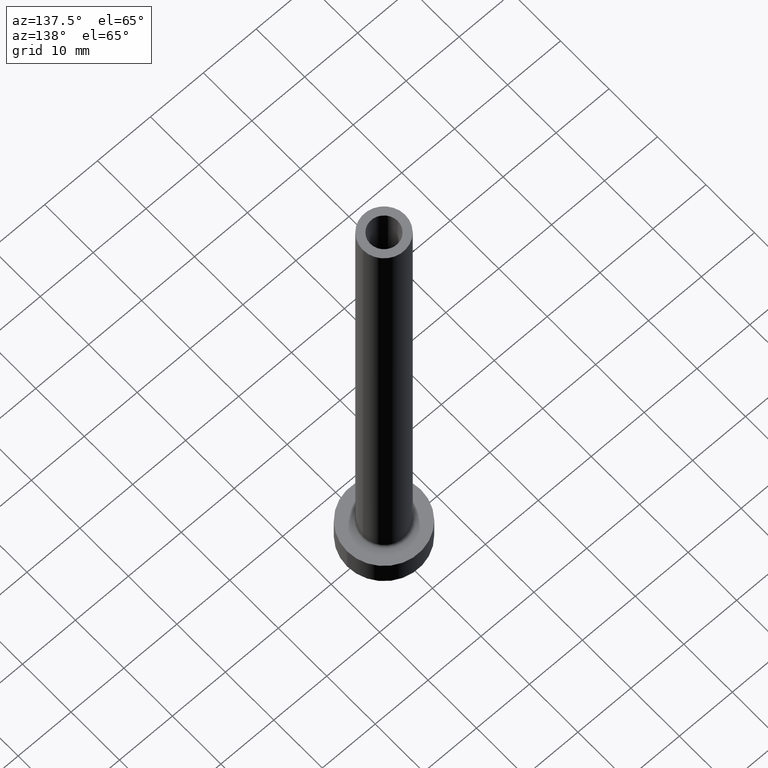
[diagram: clean part render]
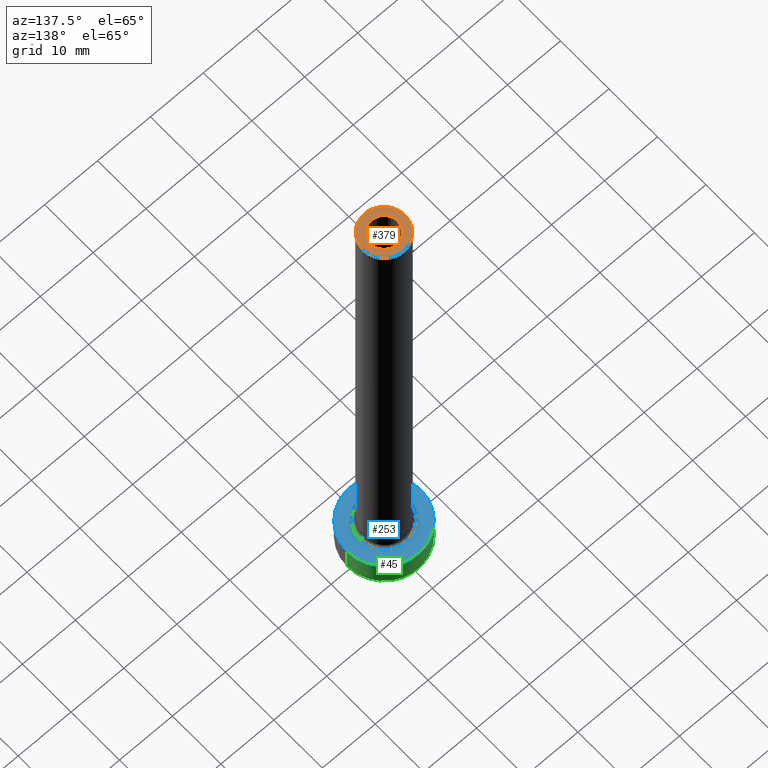
[diagram: same view with three faces highlighted in distinct colors, each labeled with its STEP entity id]
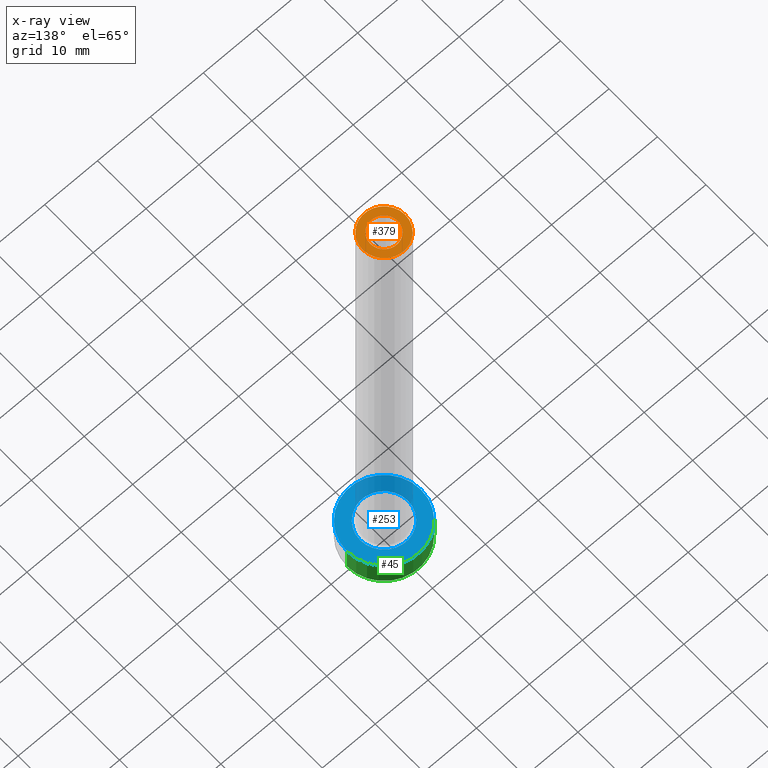
[diagram: x-ray of the same camera — body ghosted, the three highlighted faces saturated]
A machine part, auxiliary view with three faces highlighted in distinct colors.
The next image is the same camera in x-ray (body ghosted, the three faces saturated) — at least one of them is partly hidden behind the body in this view.
Their STEP definitions:

[orange] entity #379 — the highlighted planar face has unit normal (0, 0, 1).
#22 = DIRECTION ( 'NONE',  ( 1.000000000000000000, 0.000000000000000000, 0.000000000000000000 ) ) ;
#38 = FACE_BOUND ( 'NONE', #316, .T. ) ;
#39 = ORIENTED_EDGE ( 'NONE', *, *, #164, .F. ) ;
#66 = FACE_OUTER_BOUND ( 'NONE', #231, .T. ) ;
#74 = AXIS2_PLACEMENT_3D ( 'NONE', #91, #238, #448 ) ;
#80 = ORIENTED_EDGE ( 'NONE', *, *, #424, .T. ) ;
#86 = EDGE_CURVE ( 'NONE', #456, #401, #376, .T. ) ;
#87 = ORIENTED_EDGE ( 'NONE', *, *, #410, .F. ) ;
#89 = AXIS2_PLACEMENT_3D ( 'NONE', #326, #230, #221 ) ;
#91 = CARTESIAN_POINT ( 'NONE',  ( 0.000000000000000000, 0.000000000000000000, 100.0000000000000000 ) ) ;
#95 = CIRCLE ( 'NONE', #89, 4.000000000000000000 ) ;
#118 = AXIS2_PLACEMENT_3D ( 'NONE', #216, #429, #257 ) ;
#140 = AXIS2_PLACEMENT_3D ( 'NONE', #249, #254, #210 ) ;
#151 = VERTEX_POINT ( 'NONE', #239 ) ;
#163 = CARTESIAN_POINT ( 'NONE',  ( 0.000000000000000000, 0.000000000000000000, 100.0000000000000000 ) ) ;
#164 = EDGE_CURVE ( 'NONE', #324, #151, #337, .T. ) ;
#198 = CIRCLE ( 'NONE', #118, 2.600000000000000089 ) ;
#210 = DIRECTION ( 'NONE',  ( 1.000000000000000000, 0.000000000000000000, -0.000000000000000000 ) ) ;
#216 = CARTESIAN_POINT ( 'NONE',  ( 0.000000000000000000, 0.000000000000000000, 100.0000000000000000 ) ) ;
#221 = DIRECTION ( 'NONE',  ( 1.000000000000000000, 0.000000000000000000, 0.000000000000000000 ) ) ;
#230 = DIRECTION ( 'NONE',  ( 0.000000000000000000, 0.000000000000000000, 1.000000000000000000 ) ) ;
#231 = EDGE_LOOP ( 'NONE', ( #80, #259 ) ) ;
#238 = DIRECTION ( 'NONE',  ( 0.000000000000000000, 0.000000000000000000, 1.000000000000000000 ) ) ;
#239 = CARTESIAN_POINT ( 'NONE',  ( -2.600000000000000089, 0.000000000000000000, 100.0000000000000000 ) ) ;
#249 = CARTESIAN_POINT ( 'NONE',  ( 0.000000000000000000, 0.000000000000000000, 100.0000000000000000 ) ) ;
#254 = DIRECTION ( 'NONE',  ( 0.000000000000000000, 0.000000000000000000, 1.000000000000000000 ) ) ;
#257 = DIRECTION ( 'NONE',  ( 1.000000000000000000, 0.000000000000000000, 0.000000000000000000 ) ) ;
#259 = ORIENTED_EDGE ( 'NONE', *, *, #86, .T. ) ;
#269 = DIRECTION ( 'NONE',  ( 0.000000000000000000, 0.000000000000000000, 1.000000000000000000 ) ) ;
#308 = AXIS2_PLACEMENT_3D ( 'NONE', #163, #269, #22 ) ;
#316 = EDGE_LOOP ( 'NONE', ( #87, #39 ) ) ;
#320 = PLANE ( 'NONE',  #140 ) ;
#324 = VERTEX_POINT ( 'NONE', #395 ) ;
#326 = CARTESIAN_POINT ( 'NONE',  ( 0.000000000000000000, 0.000000000000000000, 100.0000000000000000 ) ) ;
#337 = CIRCLE ( 'NONE', #74, 2.600000000000000089 ) ;
#376 = CIRCLE ( 'NONE', #308, 4.000000000000000000 ) ;
#379 = ADVANCED_FACE ( 'NONE', ( #38, #66 ), #320, .T. ) ;
#395 = CARTESIAN_POINT ( 'NONE',  ( 2.600000000000000089, 3.184081677783117698E-16, 100.0000000000000000 ) ) ;
#398 = CARTESIAN_POINT ( 'NONE',  ( 4.000000000000000000, 4.898587196589412829E-16, 100.0000000000000000 ) ) ;
#401 = VERTEX_POINT ( 'NONE', #459 ) ;
#410 = EDGE_CURVE ( 'NONE', #151, #324, #198, .T. ) ;
#424 = EDGE_CURVE ( 'NONE', #401, #456, #95, .T. ) ;
#429 = DIRECTION ( 'NONE',  ( 0.000000000000000000, 0.000000000000000000, 1.000000000000000000 ) ) ;
#448 = DIRECTION ( 'NONE',  ( 1.000000000000000000, 0.000000000000000000, 0.000000000000000000 ) ) ;
#456 = VERTEX_POINT ( 'NONE', #398 ) ;
#459 = CARTESIAN_POINT ( 'NONE',  ( -4.000000000000000000, 0.000000000000000000, 100.0000000000000000 ) ) ;

[blue] entity #253 — the highlighted planar face has unit normal (0, 0, 1).
#10 = DIRECTION ( 'NONE',  ( 0.000000000000000000, 0.000000000000000000, 1.000000000000000000 ) ) ;
#24 = CIRCLE ( 'NONE', #217, 4.500000000000000888 ) ;
#40 = DIRECTION ( 'NONE',  ( 1.000000000000000000, 0.000000000000000000, 0.000000000000000000 ) ) ;
#44 = AXIS2_PLACEMENT_3D ( 'NONE', #329, #10, #40 ) ;
#55 = DIRECTION ( 'NONE',  ( 1.000000000000000000, 0.000000000000000000, 0.000000000000000000 ) ) ;
#69 = CARTESIAN_POINT ( 'NONE',  ( 0.000000000000000000, 0.000000000000000000, 5.000000000000000000 ) ) ;
#103 = DIRECTION ( 'NONE',  ( 1.000000000000000000, 0.000000000000000000, -0.000000000000000000 ) ) ;
#107 = CARTESIAN_POINT ( 'NONE',  ( -7.000000000000000000, 0.000000000000000000, 5.000000000000000000 ) ) ;
#108 = CIRCLE ( 'NONE', #44, 7.000000000000000000 ) ;
#113 = EDGE_CURVE ( 'NONE', #211, #284, #24, .T. ) ;
#135 = DIRECTION ( 'NONE',  ( 0.000000000000000000, 0.000000000000000000, 1.000000000000000000 ) ) ;
#141 = ORIENTED_EDGE ( 'NONE', *, *, #177, .T. ) ;
#144 = VERTEX_POINT ( 'NONE', #170 ) ;
#167 = CARTESIAN_POINT ( 'NONE',  ( 0.000000000000000000, 0.000000000000000000, 5.000000000000000000 ) ) ;
#168 = DIRECTION ( 'NONE',  ( -0.000000000000000000, -0.000000000000000000, -1.000000000000000000 ) ) ;
#170 = CARTESIAN_POINT ( 'NONE',  ( 7.000000000000000000, 8.572527594031473190E-16, 5.000000000000000000 ) ) ;
#171 = CIRCLE ( 'NONE', #383, 4.500000000000000888 ) ;
#174 = ORIENTED_EDGE ( 'NONE', *, *, #113, .T. ) ;
#177 = EDGE_CURVE ( 'NONE', #284, #211, #171, .T. ) ;
#181 = AXIS2_PLACEMENT_3D ( 'NONE', #69, #421, #245 ) ;
#211 = VERTEX_POINT ( 'NONE', #242 ) ;
#217 = AXIS2_PLACEMENT_3D ( 'NONE', #409, #168, #55 ) ;
#242 = CARTESIAN_POINT ( 'NONE',  ( 4.500000000000000888, 0.000000000000000000, 5.000000000000002665 ) ) ;
#245 = DIRECTION ( 'NONE',  ( 1.000000000000000000, 0.000000000000000000, 0.000000000000000000 ) ) ;
#248 = EDGE_CURVE ( 'NONE', #423, #144, #344, .T. ) ;
#252 = EDGE_LOOP ( 'NONE', ( #174, #141 ) ) ;
#253 = ADVANCED_FACE ( 'NONE', ( #390, #348 ), #323, .T. ) ;
#280 = ORIENTED_EDGE ( 'NONE', *, *, #458, .T. ) ;
#284 = VERTEX_POINT ( 'NONE', #393 ) ;
#303 = DIRECTION ( 'NONE',  ( -0.000000000000000000, -0.000000000000000000, -1.000000000000000000 ) ) ;
#323 = PLANE ( 'NONE',  #438 ) ;
#329 = CARTESIAN_POINT ( 'NONE',  ( 0.000000000000000000, 0.000000000000000000, 5.000000000000000000 ) ) ;
#344 = CIRCLE ( 'NONE', #181, 7.000000000000000000 ) ;
#348 = FACE_OUTER_BOUND ( 'NONE', #389, .T. ) ;
#383 = AXIS2_PLACEMENT_3D ( 'NONE', #167, #303, #416 ) ;
#387 = CARTESIAN_POINT ( 'NONE',  ( 0.000000000000000000, 0.000000000000000000, 5.000000000000000000 ) ) ;
#389 = EDGE_LOOP ( 'NONE', ( #440, #280 ) ) ;
#390 = FACE_BOUND ( 'NONE', #252, .T. ) ;
#393 = CARTESIAN_POINT ( 'NONE',  ( -4.500000000000000888, 5.510910596163088569E-16, 5.000000000000002665 ) ) ;
#409 = CARTESIAN_POINT ( 'NONE',  ( 0.000000000000000000, 0.000000000000000000, 5.000000000000000000 ) ) ;
#416 = DIRECTION ( 'NONE',  ( 1.000000000000000000, 0.000000000000000000, 0.000000000000000000 ) ) ;
#421 = DIRECTION ( 'NONE',  ( 0.000000000000000000, 0.000000000000000000, 1.000000000000000000 ) ) ;
#423 = VERTEX_POINT ( 'NONE', #107 ) ;
#438 = AXIS2_PLACEMENT_3D ( 'NONE', #387, #135, #103 ) ;
#440 = ORIENTED_EDGE ( 'NONE', *, *, #248, .T. ) ;
#458 = EDGE_CURVE ( 'NONE', #144, #423, #108, .T. ) ;

[green] entity #45 — the highlighted cylindrical surface (partial cylindrical patch) has radius 7 mm, axis along (-0, -0, -1).
#10 = DIRECTION ( 'NONE',  ( 0.000000000000000000, 0.000000000000000000, 1.000000000000000000 ) ) ;
#14 = EDGE_LOOP ( 'NONE', ( #297, #267, #355, #300 ) ) ;
#40 = DIRECTION ( 'NONE',  ( 1.000000000000000000, 0.000000000000000000, 0.000000000000000000 ) ) ;
#43 = CARTESIAN_POINT ( 'NONE',  ( 0.000000000000000000, 0.000000000000000000, 5.000000000000000000 ) ) ;
#44 = AXIS2_PLACEMENT_3D ( 'NONE', #329, #10, #40 ) ;
#45 = ADVANCED_FACE ( 'NONE', ( #365 ), #402, .T. ) ;
#56 = LINE ( 'NONE', #197, #119 ) ;
#57 = VECTOR ( 'NONE', #270, 1000.000000000000000 ) ;
#60 = DIRECTION ( 'NONE',  ( -0.000000000000000000, -0.000000000000000000, -1.000000000000000000 ) ) ;
#72 = DIRECTION ( 'NONE',  ( 1.000000000000000000, 0.000000000000000000, 0.000000000000000000 ) ) ;
#107 = CARTESIAN_POINT ( 'NONE',  ( -7.000000000000000000, 0.000000000000000000, 5.000000000000000000 ) ) ;
#108 = CIRCLE ( 'NONE', #44, 7.000000000000000000 ) ;
#119 = VECTOR ( 'NONE', #60, 1000.000000000000000 ) ;
#128 = CARTESIAN_POINT ( 'NONE',  ( 7.000000000000000000, 8.572527594031473190E-16, 5.000000000000000000 ) ) ;
#133 = LINE ( 'NONE', #128, #57 ) ;
#139 = DIRECTION ( 'NONE',  ( 0.000000000000000000, 0.000000000000000000, 1.000000000000000000 ) ) ;
#144 = VERTEX_POINT ( 'NONE', #170 ) ;
#148 = EDGE_CURVE ( 'NONE', #423, #226, #56, .T. ) ;
#170 = CARTESIAN_POINT ( 'NONE',  ( 7.000000000000000000, 8.572527594031473190E-16, 5.000000000000000000 ) ) ;
#187 = DIRECTION ( 'NONE',  ( -1.000000000000000000, 0.000000000000000000, 0.000000000000000000 ) ) ;
#197 = CARTESIAN_POINT ( 'NONE',  ( -7.000000000000000000, 0.000000000000000000, 5.000000000000000000 ) ) ;
#200 = EDGE_CURVE ( 'NONE', #144, #362, #133, .T. ) ;
#226 = VERTEX_POINT ( 'NONE', #243 ) ;
#243 = CARTESIAN_POINT ( 'NONE',  ( -7.000000000000000000, 0.000000000000000000, 0.000000000000000000 ) ) ;
#256 = AXIS2_PLACEMENT_3D ( 'NONE', #288, #139, #72 ) ;
#267 = ORIENTED_EDGE ( 'NONE', *, *, #200, .T. ) ;
#270 = DIRECTION ( 'NONE',  ( -0.000000000000000000, -0.000000000000000000, -1.000000000000000000 ) ) ;
#288 = CARTESIAN_POINT ( 'NONE',  ( 0.000000000000000000, 0.000000000000000000, 0.000000000000000000 ) ) ;
#297 = ORIENTED_EDGE ( 'NONE', *, *, #458, .F. ) ;
#300 = ORIENTED_EDGE ( 'NONE', *, *, #148, .F. ) ;
#329 = CARTESIAN_POINT ( 'NONE',  ( 0.000000000000000000, 0.000000000000000000, 5.000000000000000000 ) ) ;
#355 = ORIENTED_EDGE ( 'NONE', *, *, #403, .T. ) ;
#359 = AXIS2_PLACEMENT_3D ( 'NONE', #43, #406, #187 ) ;
#362 = VERTEX_POINT ( 'NONE', #425 ) ;
#365 = FACE_OUTER_BOUND ( 'NONE', #14, .T. ) ;
#402 = CYLINDRICAL_SURFACE ( 'NONE', #359, 7.000000000000000000 ) ;
#403 = EDGE_CURVE ( 'NONE', #362, #226, #450, .T. ) ;
#406 = DIRECTION ( 'NONE',  ( -0.000000000000000000, -0.000000000000000000, -1.000000000000000000 ) ) ;
#423 = VERTEX_POINT ( 'NONE', #107 ) ;
#425 = CARTESIAN_POINT ( 'NONE',  ( 7.000000000000000000, 8.572527594031473190E-16, 0.000000000000000000 ) ) ;
#450 = CIRCLE ( 'NONE', #256, 7.000000000000000000 ) ;
#458 = EDGE_CURVE ( 'NONE', #144, #423, #108, .T. ) ;